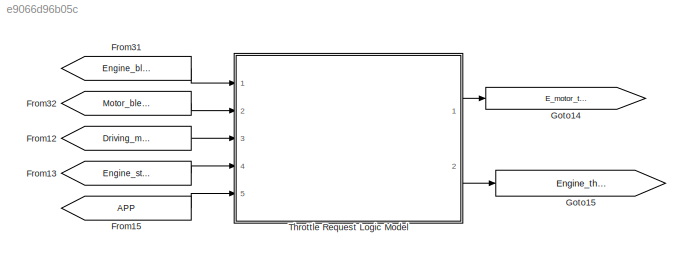
MODEL slx_e9066d96b05c
KIND model
CONFIG AbsTol = auto
CONFIG FixedStep = auto
CONFIG MaxStep = auto
CONFIG MinStep = auto
CONFIG RelTol = 1e-3
CONFIG SampleTimeConstraint = Unconstrained
CONFIG Solver = ode45
CONFIG SolverMode = Auto
CONFIG SolverName = ode45
CONFIG StartTime = 0.0
CONFIG StopTime = 10.0
BLOCK [From] From12
  GotoTag = Driving_mode
BLOCK [From] From13
  GotoTag = Engine_state
BLOCK [From] From15
  GotoTag = APP
BLOCK [From] From31
  GotoTag = Engine_blend_factor
BLOCK [From] From32
  GotoTag = Motor_blend_factor
BLOCK [Goto] Goto14
  GotoTag = E_motor_torque_request
BLOCK [Goto] Goto15
  GotoTag = Engine_throttle_request
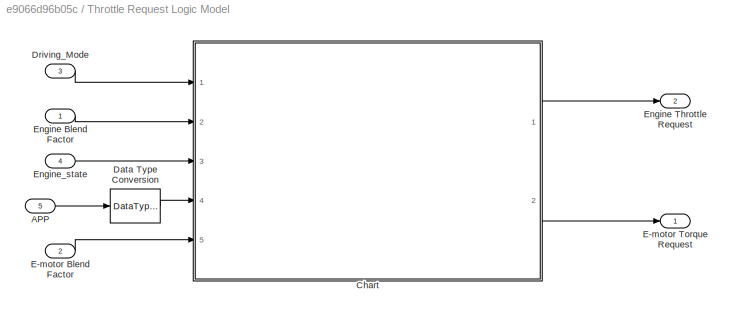
BLOCK [SubSystem] Throttle Request Logic Model
  Ports = [5, 2]
  RequestExecContextInheritance = off
BLOCK [Inport] Throttle Request Logic Model/APP
  IconDisplay = Port number
  Port = 5
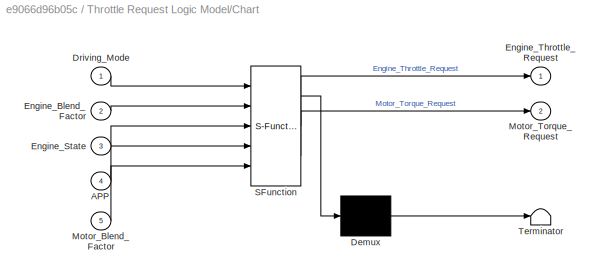
BLOCK [SubSystem] Throttle Request Logic Model/Chart
  ErrorFcn = Stateflow.Translate.translate
  PermitHierarchicalResolution = ExplicitOnly
  Ports = [5, 2]
  RequestExecContextInheritance = off
  SFBlockType = Chart
  TreatAsAtomicUnit = on
BLOCK [Demux] Throttle Request Logic Model/Chart/ Demux 
  Outputs = 1
  Ports = [1, 1]
BLOCK [S-Function] Throttle Request Logic Model/Chart/ SFunction 
  EnableBusSupport = on
  FunctionName = sf_sfun
  PortCounts = [5 3]
  Ports = [5, 3]
  Tag = Stateflow S-Function validate_throttle_request 4
BLOCK [Terminator] Throttle Request Logic Model/Chart/ Terminator 
BLOCK [Inport] Throttle Request Logic Model/Chart/APP
  IconDisplay = Port number
  Port = 4
BLOCK [Inport] Throttle Request Logic Model/Chart/Driving_Mode
  IconDisplay = Port number
BLOCK [Inport] Throttle Request Logic Model/Chart/Engine_Blend_Factor
  IconDisplay = Port number
  Port = 2
BLOCK [Inport] Throttle Request Logic Model/Chart/Engine_State
  IconDisplay = Port number
  Port = 3
BLOCK [Outport] Throttle Request Logic Model/Chart/Engine_Throttle_Request
  IconDisplay = Port number
BLOCK [Inport] Throttle Request Logic Model/Chart/Motor_Blend_Factor
  IconDisplay = Port number
  Port = 5
BLOCK [Outport] Throttle Request Logic Model/Chart/Motor_Torque_Request
  IconDisplay = Port number
  Port = 2
BLOCK [DataTypeConversion] Throttle Request Logic Model/Data Type Conversion
  RndMeth = Floor
  SaturateOnIntegerOverflow = off
BLOCK [Inport] Throttle Request Logic Model/Driving_Mode
  IconDisplay = Port number
  Port = 3
BLOCK [Inport] Throttle Request Logic Model/E-motor Blend Factor
  IconDisplay = Port number
  Port = 2
BLOCK [Outport] Throttle Request Logic Model/E-motor Torque Request
  IconDisplay = Port number
BLOCK [Inport] Throttle Request Logic Model/Engine Blend Factor
  IconDisplay = Port number
BLOCK [Outport] Throttle Request Logic Model/Engine Throttle Request
  IconDisplay = Port number
  Port = 2
BLOCK [Inport] Throttle Request Logic Model/Engine_state
  IconDisplay = Port number
  Port = 4
LINE From12:1 -> Throttle Request Logic Model:3
LINE From13:1 -> Throttle Request Logic Model:4
LINE From15:1 -> Throttle Request Logic Model:5
LINE From31:1 -> Throttle Request Logic Model:1
LINE From32:1 -> Throttle Request Logic Model:2
LINE Throttle Request Logic Model/APP:1 -> Throttle Request Logic Model/Data Type Conversion:1
LINE Throttle Request Logic Model/Chart:1 -> Throttle Request Logic Model/Engine Throttle Request:1
LINE Throttle Request Logic Model/Chart:2 -> Throttle Request Logic Model/E-motor Torque Request:1
LINE Throttle Request Logic Model/Data Type Conversion:1 -> Throttle Request Logic Model/Chart:4
LINE Throttle Request Logic Model/Driving_Mode:1 -> Throttle Request Logic Model/Chart:1
LINE Throttle Request Logic Model/E-motor Blend Factor:1 -> Throttle Request Logic Model/Chart:5
LINE Throttle Request Logic Model/Engine Blend Factor:1 -> Throttle Request Logic Model/Chart:2
LINE Throttle Request Logic Model/Engine_state:1 -> Throttle Request Logic Model/Chart:3
LINE Throttle Request Logic Model:1 -> Goto14:1
LINE Throttle Request Logic Model:2 -> Goto15:1
CHART Throttle Request Logic Model/Chart states=5 transitions=10
  STATE_LABEL 'BlendingMode \n\n'
  STATE_LABEL 'State1\nduring: Engine_Throttle_Request=7.5;\nduring:Motor_Torque_Request=APP*Motor_Blend_Factor;'
  STATE_LABEL 'State2\nduring: Engine_Throttle_Request=(APP*Engine_Blend_Factor);\nduring: Motor_Torque_Request=APP*Motor_Blend_Factor;'
  STATE_LABEL '[Engine_State==2||Engine_State==3]'
  STATE_LABEL '[Engine_State==1||Engine_State==4||Engine_State==5]'
  STATE_LABEL 'State1\nduring: Engine_Throttle_Request=7.5;\nduring:Motor_Torque_Request=APP*Motor_Blend_Factor;'
  STATE_LABEL 'State2\nduring: Engine_Throttle_Request=(APP*Engine_Blend_Factor);\nduring: Motor_Torque_Request=APP*Motor_Blend_Factor;'
  STATE_LABEL 'ElectricSoloMode\nduring: Engine_Throttle_Request=0;\nduring: Motor_Torque_Request=APP;'
  STATE_LABEL 'EngineSoloMode\nduring:Engine_Throttle_Request=APP;\nduring: Motor_Torque_Request = 0;\n'
